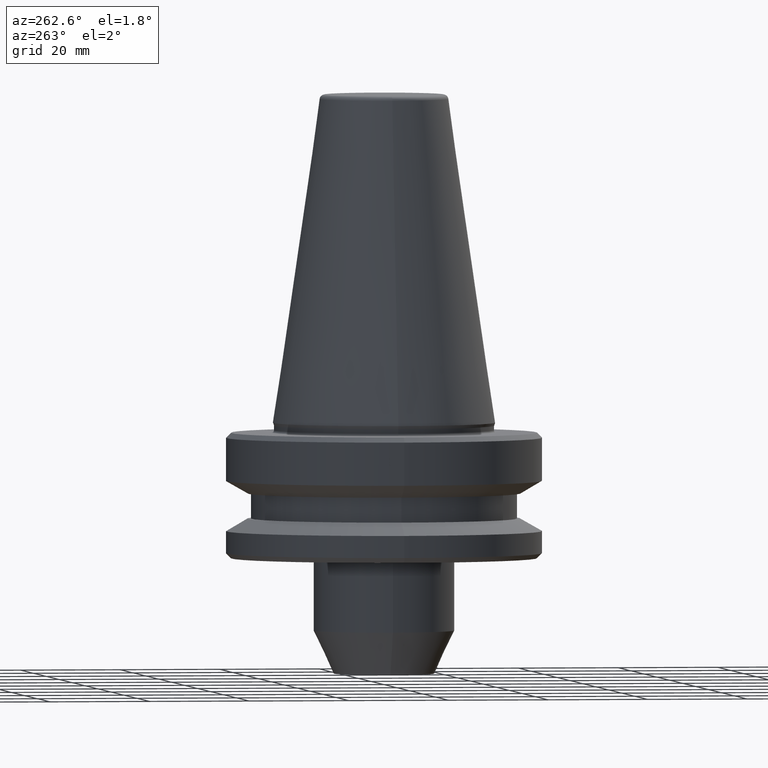
[diagram: clean part render]
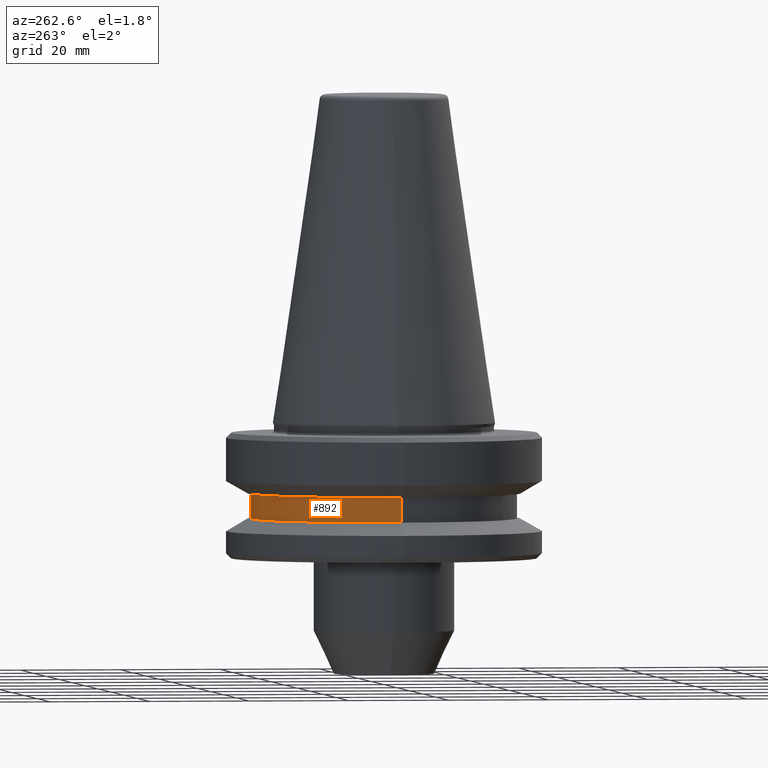
[diagram: same view with one face highlighted and labeled with its STEP entity id]
A machine part, auxiliary view. The second image highlights one B-rep face of the part: STEP entity #892.
In plain terms, the highlighted cylindrical surface (partial cylindrical patch) has radius 26.5 mm, axis along (-0, -0, 1).
Its self-contained STEP definition (entity closure, byte-faithful):
#8 = EDGE_CURVE ( 'NONE', #332, #43, #633, .T. ) ;
#13 = DIRECTION ( 'NONE',  ( 1.000000000000000000, 0.0000000000000000000, 0.0000000000000000000 ) ) ;
#43 = VERTEX_POINT ( 'NONE', #590 ) ;
#57 = FACE_OUTER_BOUND ( 'NONE', #177, .T. ) ;
#78 = CARTESIAN_POINT ( 'NONE',  ( -26.49999999999996800, 3.245314017740481800E-015, -14.10000000000055600 ) ) ;
#98 = VERTEX_POINT ( 'NONE', #510 ) ;
#120 = ORIENTED_EDGE ( 'NONE', *, *, #8, .T. ) ;
#177 = EDGE_LOOP ( 'NONE', ( #120, #354, #944, #646 ) ) ;
#212 = EDGE_CURVE ( 'NONE', #332, #98, #389, .T. ) ;
#249 = CYLINDRICAL_SURFACE ( 'NONE', #821, 26.49999999999996800 ) ;
#304 = DIRECTION ( 'NONE',  ( -0.0000000000000000000, -0.0000000000000000000, 1.000000000000000000 ) ) ;
#332 = VERTEX_POINT ( 'NONE', #661 ) ;
#337 = DIRECTION ( 'NONE',  ( -0.0000000000000000000, -0.0000000000000000000, 1.000000000000000000 ) ) ;
#348 = VECTOR ( 'NONE', #992, 1000.000000000000000 ) ;
#354 = ORIENTED_EDGE ( 'NONE', *, *, #662, .T. ) ;
#374 = CARTESIAN_POINT ( 'NONE',  ( 0.0000000000000000000, 0.0000000000000000000, -19.10000000000100300 ) ) ;
#383 = VERTEX_POINT ( 'NONE', #78 ) ;
#389 = LINE ( 'NONE', #467, #348 ) ;
#467 = CARTESIAN_POINT ( 'NONE',  ( 26.49999999999996800, 0.0000000000000000000, 119.1156155462287700 ) ) ;
#510 = CARTESIAN_POINT ( 'NONE',  ( 26.49999999999996800, 0.0000000000000000000, -14.10000000000055600 ) ) ;
#574 = CARTESIAN_POINT ( 'NONE',  ( -26.49999999999996800, 3.245314017740481800E-015, 119.1156155462287700 ) ) ;
#590 = CARTESIAN_POINT ( 'NONE',  ( -26.49999999999996800, 3.245314017740481800E-015, -19.10000000000100300 ) ) ;
#614 = AXIS2_PLACEMENT_3D ( 'NONE', #374, #337, #13 ) ;
#621 = DIRECTION ( 'NONE',  ( 1.000000000000000000, 0.0000000000000000000, 0.0000000000000000000 ) ) ;
#633 = CIRCLE ( 'NONE', #614, 26.49999999999996800 ) ;
#646 = ORIENTED_EDGE ( 'NONE', *, *, #212, .F. ) ;
#661 = CARTESIAN_POINT ( 'NONE',  ( 26.49999999999996800, 0.0000000000000000000, -19.10000000000100300 ) ) ;
#662 = EDGE_CURVE ( 'NONE', #43, #383, #806, .T. ) ;
#712 = CARTESIAN_POINT ( 'NONE',  ( 0.0000000000000000000, 0.0000000000000000000, -14.10000000000055600 ) ) ;
#748 = DIRECTION ( 'NONE',  ( 1.000000000000000000, 0.0000000000000000000, 0.0000000000000000000 ) ) ;
#796 = EDGE_CURVE ( 'NONE', #98, #383, #828, .T. ) ;
#806 = LINE ( 'NONE', #574, #982 ) ;
#821 = AXIS2_PLACEMENT_3D ( 'NONE', #900, #922, #748 ) ;
#827 = DIRECTION ( 'NONE',  ( -0.0000000000000000000, -0.0000000000000000000, 1.000000000000000000 ) ) ;
#828 = CIRCLE ( 'NONE', #831, 26.49999999999996800 ) ;
#831 = AXIS2_PLACEMENT_3D ( 'NONE', #712, #304, #621 ) ;
#892 = ADVANCED_FACE ( 'NONE', ( #57 ), #249, .T. ) ;
#900 = CARTESIAN_POINT ( 'NONE',  ( 0.0000000000000000000, 0.0000000000000000000, 119.1156155462287700 ) ) ;
#922 = DIRECTION ( 'NONE',  ( -0.0000000000000000000, -0.0000000000000000000, 1.000000000000000000 ) ) ;
#944 = ORIENTED_EDGE ( 'NONE', *, *, #796, .F. ) ;
#982 = VECTOR ( 'NONE', #827, 1000.000000000000000 ) ;
#992 = DIRECTION ( 'NONE',  ( -0.0000000000000000000, -0.0000000000000000000, 1.000000000000000000 ) ) ;